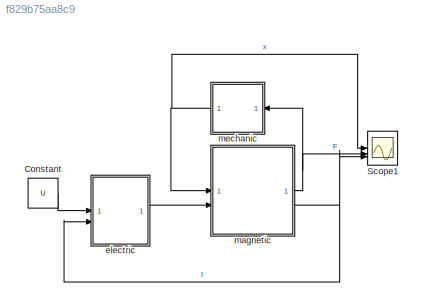
MODEL slx_f829b75aa8c9
KIND model
CONFIG AbsTol = auto
CONFIG EnableMultiTasking = off
CONFIG FixedStep = auto
CONFIG MaxStep = te/100
CONFIG MinStep = auto
CONFIG RelTol = 1e-3
CONFIG SampleTimeConstraint = Unconstrained
CONFIG SolverName = VariableStepAuto
CONFIG StartTime = 0.0
CONFIG StopTime = te
BLOCK [Constant] Constant
  Value = U
BLOCK [Scope] Scope1
  Floating = off
  NumInputPorts = 3
  ScopeSpecificationString = Simulink.scopes.TimeScopeBlockCfg('CurrentConfiguration', extmgr.ConfigurationSet(extmgr.Configuration('Core','General UI',true),extmgr.Configuration('Core','Source UI',true),extmgr.Configuration('Sources','WiredSimulink',true,'DataLoggingVariableName','ScopeData1'),extmgr.Configuration('Visuals','Time Domain',true,'SerializedDisplays',{struct('MinYLimReal','-0.00141','MaxYLimReal','0.01273','YLab...<+3020ch>
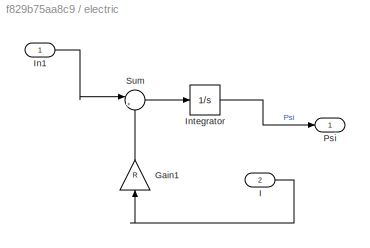
BLOCK [SubSystem] electric
BLOCK [Gain] electric/Gain1
  Gain = R
  NameLocation = right
BLOCK [Inport] electric/I
  Port = 2
BLOCK [Inport] electric/In1
BLOCK [Integrator] electric/Integrator
BLOCK [Outport] electric/Psi
BLOCK [Sum] electric/Sum
  Inputs = |+-
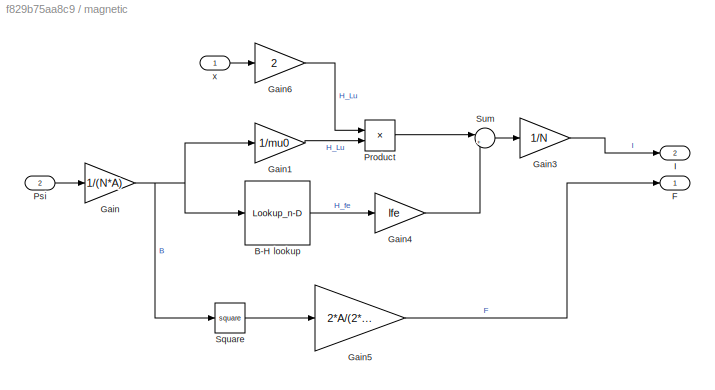
BLOCK [SubSystem] magnetic
BLOCK [Lookup_n-D] magnetic/B-H lookup
  BreakpointsForDimension1 = B
  InputPortMap = u0
  InternalRulePriority = Speed
  NumberOfTableDimensions = 1
  RndMeth = Simplest
  Table = H
BLOCK [Outport] magnetic/F
BLOCK [Gain] magnetic/Gain
  Gain = 1/(N*A)
BLOCK [Gain] magnetic/Gain1
  Gain = 1/mu0
BLOCK [Gain] magnetic/Gain3
  Gain = 1/N
BLOCK [Gain] magnetic/Gain4
  Gain = lfe
BLOCK [Gain] magnetic/Gain5
  Gain = 2*A/(2*mu0)
BLOCK [Gain] magnetic/Gain6
  Gain = 2
BLOCK [Outport] magnetic/I
  Port = 2
BLOCK [Product] magnetic/Product
BLOCK [Inport] magnetic/Psi
  Port = 2
BLOCK [Math] magnetic/Square
  Operator = square
BLOCK [Sum] magnetic/Sum
  Inputs = |++
BLOCK [Inport] magnetic/x
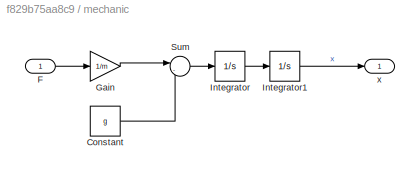
BLOCK [SubSystem] mechanic
  NameLocation = top
BLOCK [Constant] mechanic/Constant
  Value = g
BLOCK [Inport] mechanic/F
BLOCK [Gain] mechanic/Gain
  Gain = 1/m
BLOCK [Integrator] mechanic/Integrator
BLOCK [Integrator] mechanic/Integrator1
  InitialCondition = x0
  LimitOutput = on
  LowerSaturationLimit = 0
BLOCK [Sum] mechanic/Sum
  Inputs = |-+
BLOCK [Outport] mechanic/x
LINE Constant:1 -> electric:1
LINE electric/Gain1:1 -> electric/Sum:2
LINE electric/I:1 -> electric/Gain1:1
LINE electric/In1:1 -> electric/Sum:1
LINE electric/Integrator:1 -> electric/Psi:1
LINE electric/Sum:1 -> electric/Integrator:1
LINE electric:1 -> magnetic:2
LINE magnetic/B-H lookup:1 -> magnetic/Gain4:1
LINE magnetic/Gain1:1 -> magnetic/Product:2
LINE magnetic/Gain3:1 -> magnetic/I:1
LINE magnetic/Gain4:1 -> magnetic/Sum:2
LINE magnetic/Gain5:1 -> magnetic/F:1
LINE magnetic/Gain6:1 -> magnetic/Product:1
NET magnetic/Gain:1 -> magnetic/B-H lookup:1, magnetic/Gain1:1, magnetic/Square:1
LINE magnetic/Product:1 -> magnetic/Sum:1
LINE magnetic/Psi:1 -> magnetic/Gain:1
LINE magnetic/Square:1 -> magnetic/Gain5:1
LINE magnetic/Sum:1 -> magnetic/Gain3:1
LINE magnetic/x:1 -> magnetic/Gain6:1
NET magnetic:1 -> Scope1:2, mechanic:1
NET magnetic:2 -> Scope1:3, electric:2
LINE mechanic/Constant:1 -> mechanic/Sum:2
LINE mechanic/F:1 -> mechanic/Gain:1
LINE mechanic/Gain:1 -> mechanic/Sum:1
LINE mechanic/Integrator1:1 -> mechanic/x:1
LINE mechanic/Integrator:1 -> mechanic/Integrator1:1
LINE mechanic/Sum:1 -> mechanic/Integrator:1
NET mechanic:1 -> Scope1:1, magnetic:1
note: NET lines group one-source signal fan-out (src -> all destinations, sorted); 1:1 wires keep LINE
